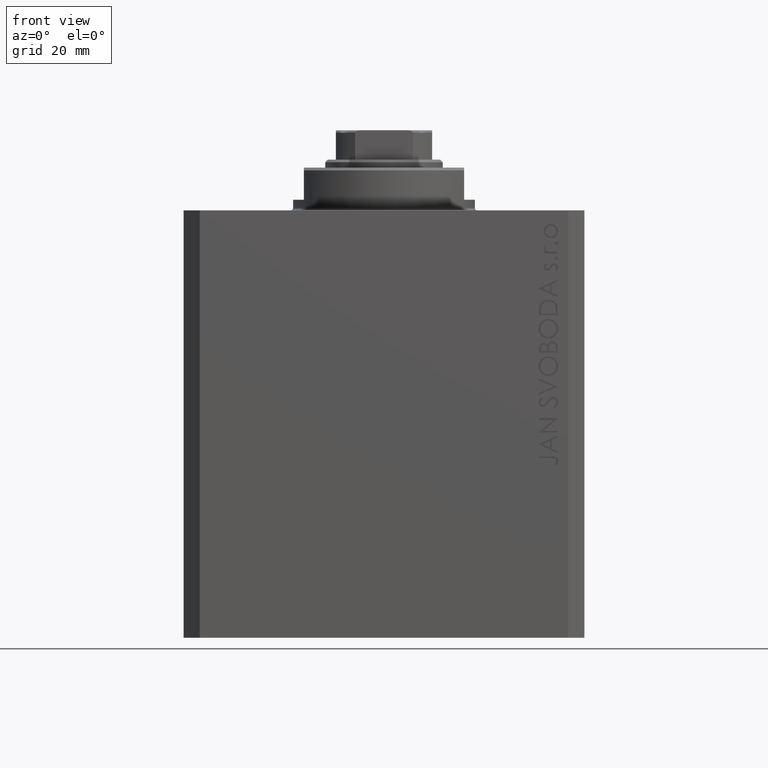
[diagram: clean part render]
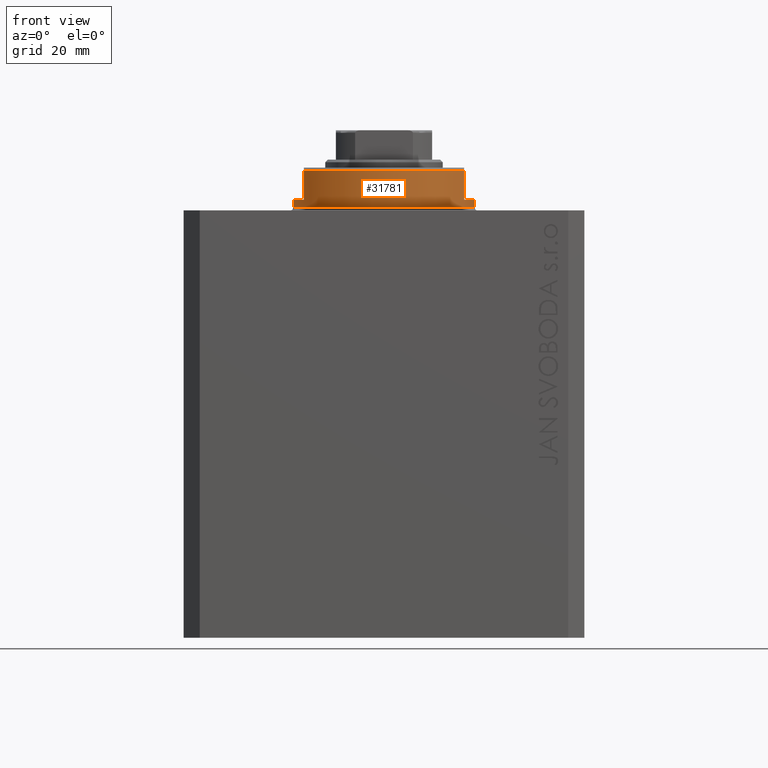
[diagram: same view with one face highlighted and labeled with its STEP entity id]
A machine part, front view. The second image highlights one B-rep face of the part: STEP entity #31781.
In plain terms, the highlighted cylindrical surface (partial cylindrical patch) has radius 17 mm, axis along (0, 0, -1).
Its self-contained STEP definition (entity closure, byte-faithful):
#1506 = LINE ( 'NONE', #5110, #34468 ) ;
#1979 = LINE ( 'NONE', #3389, #39656 ) ;
#2276 = CARTESIAN_POINT ( 'NONE',  ( 14.99999999999999645, -8.000000000000003553, -2.000000000000000000 ) ) ;
#2711 = EDGE_CURVE ( 'NONE', #4168, #4771, #38045, .T. ) ;
#2921 = VERTEX_POINT ( 'NONE', #40996 ) ;
#3389 = CARTESIAN_POINT ( 'NONE',  ( -15.00000000000000000, -8.000000000000001776, -8.000000000000000000 ) ) ;
#4168 = VERTEX_POINT ( 'NONE', #10435 ) ;
#4234 = ORIENTED_EDGE ( 'NONE', *, *, #41694, .F. ) ;
#4541 = AXIS2_PLACEMENT_3D ( 'NONE', #17816, #17576, #32217 ) ;
#4771 = VERTEX_POINT ( 'NONE', #12259 ) ;
#5110 = CARTESIAN_POINT ( 'NONE',  ( 17.00000000000000000, 0.000000000000000000, -8.000000000000000000 ) ) ;
#5360 = VERTEX_POINT ( 'NONE', #21398 ) ;
#6882 = FACE_OUTER_BOUND ( 'NONE', #23162, .T. ) ;
#7333 = ORIENTED_EDGE ( 'NONE', *, *, #36870, .F. ) ;
#7340 = CARTESIAN_POINT ( 'NONE',  ( 0.000000000000000000, 0.000000000000000000, -0.5000000000000004441 ) ) ;
#10435 = CARTESIAN_POINT ( 'NONE',  ( -15.00000000000000000, -8.000000000000001776, -7.500000000000007105 ) ) ;
#11635 = EDGE_CURVE ( 'NONE', #14381, #41422, #22178, .T. ) ;
#11823 = DIRECTION ( 'NONE',  ( -0.000000000000000000, -0.000000000000000000, 1.000000000000000000 ) ) ;
#12046 = DIRECTION ( 'NONE',  ( -1.000000000000000000, 0.000000000000000000, 0.000000000000000000 ) ) ;
#12089 = VERTEX_POINT ( 'NONE', #34652 ) ;
#12139 = EDGE_CURVE ( 'NONE', #2921, #4168, #1979, .T. ) ;
#12166 = ORIENTED_EDGE ( 'NONE', *, *, #20340, .T. ) ;
#12259 = CARTESIAN_POINT ( 'NONE',  ( 15.00000000000000000, -8.000000000000001776, -7.500000000000007105 ) ) ;
#13516 = DIRECTION ( 'NONE',  ( 0.000000000000000000, 0.000000000000000000, -1.000000000000000000 ) ) ;
#13813 = VECTOR ( 'NONE', #11823, 1000.000000000000000 ) ;
#14108 = DIRECTION ( 'NONE',  ( -0.000000000000000000, -0.000000000000000000, 1.000000000000000000 ) ) ;
#14381 = VERTEX_POINT ( 'NONE', #32575 ) ;
#15196 = ORIENTED_EDGE ( 'NONE', *, *, #2711, .T. ) ;
#16656 = CARTESIAN_POINT ( 'NONE',  ( 15.00000000000000000, -8.000000000000001776, -8.000000000000000000 ) ) ;
#17130 = LINE ( 'NONE', #16656, #31545 ) ;
#17227 = CYLINDRICAL_SURFACE ( 'NONE', #39760, 17.00000000000000000 ) ;
#17576 = DIRECTION ( 'NONE',  ( 0.000000000000000000, 0.000000000000000000, -1.000000000000000000 ) ) ;
#17737 = DIRECTION ( 'NONE',  ( -1.000000000000000000, 0.000000000000000000, 0.000000000000000000 ) ) ;
#17816 = CARTESIAN_POINT ( 'NONE',  ( 0.000000000000000000, 0.000000000000000000, -2.000000000000000000 ) ) ;
#18162 = DIRECTION ( 'NONE',  ( -0.000000000000000000, -0.000000000000000000, -1.000000000000000000 ) ) ;
#20340 = EDGE_CURVE ( 'NONE', #5360, #12089, #34105, .T. ) ;
#21398 = CARTESIAN_POINT ( 'NONE',  ( 17.00000000000000000, 0.000000000000000000, -0.5000000000000004441 ) ) ;
#21409 = CIRCLE ( 'NONE', #4541, 17.00000000000000000 ) ;
#22007 = DIRECTION ( 'NONE',  ( 1.000000000000000000, 0.000000000000000000, 0.000000000000000000 ) ) ;
#22062 = VERTEX_POINT ( 'NONE', #33493 ) ;
#22178 = CIRCLE ( 'NONE', #25269, 17.00000000000000000 ) ;
#23162 = EDGE_LOOP ( 'NONE', ( #7333, #28355, #31042, #15196, #4234, #43971, #24244, #12166 ) ) ;
#24244 = ORIENTED_EDGE ( 'NONE', *, *, #35511, .T. ) ;
#24339 = DIRECTION ( 'NONE',  ( 0.000000000000000000, 0.000000000000000000, -1.000000000000000000 ) ) ;
#25269 = AXIS2_PLACEMENT_3D ( 'NONE', #41540, #30752, #12046 ) ;
#27447 = DIRECTION ( 'NONE',  ( -0.000000000000000000, -0.000000000000000000, 1.000000000000000000 ) ) ;
#28355 = ORIENTED_EDGE ( 'NONE', *, *, #35678, .F. ) ;
#28745 = AXIS2_PLACEMENT_3D ( 'NONE', #7340, #18162, #22007 ) ;
#30063 = CARTESIAN_POINT ( 'NONE',  ( -17.00000000000000000, 2.081899558550500280E-15, -8.000000000000000000 ) ) ;
#30752 = DIRECTION ( 'NONE',  ( 0.000000000000000000, 0.000000000000000000, -1.000000000000000000 ) ) ;
#31042 = ORIENTED_EDGE ( 'NONE', *, *, #12139, .T. ) ;
#31545 = VECTOR ( 'NONE', #24339, 1000.000000000000000 ) ;
#31781 = ADVANCED_FACE ( 'NONE', ( #6882 ), #17227, .T. ) ;
#32217 = DIRECTION ( 'NONE',  ( -1.000000000000000000, 0.000000000000000000, 0.000000000000000000 ) ) ;
#32575 = CARTESIAN_POINT ( 'NONE',  ( 17.00000000000000000, 0.000000000000000000, -2.000000000000000000 ) ) ;
#32694 = LINE ( 'NONE', #30063, #13813 ) ;
#33493 = CARTESIAN_POINT ( 'NONE',  ( -17.00000000000000000, 2.081899558550500280E-15, -2.000000000000000000 ) ) ;
#34105 = CIRCLE ( 'NONE', #28745, 17.00000000000000000 ) ;
#34221 = AXIS2_PLACEMENT_3D ( 'NONE', #45594, #45825, #17737 ) ;
#34468 = VECTOR ( 'NONE', #27447, 1000.000000000000000 ) ;
#34652 = CARTESIAN_POINT ( 'NONE',  ( -17.00000000000000000, 2.081899558550500280E-15, -0.5000000000000004441 ) ) ;
#35511 = EDGE_CURVE ( 'NONE', #14381, #5360, #1506, .T. ) ;
#35678 = EDGE_CURVE ( 'NONE', #2921, #22062, #21409, .T. ) ;
#36412 = CARTESIAN_POINT ( 'NONE',  ( 0.000000000000000000, 0.000000000000000000, -8.000000000000000000 ) ) ;
#36870 = EDGE_CURVE ( 'NONE', #22062, #12089, #32694, .T. ) ;
#38045 = CIRCLE ( 'NONE', #34221, 17.00000000000000000 ) ;
#39532 = DIRECTION ( 'NONE',  ( 1.000000000000000000, 0.000000000000000000, 0.000000000000000000 ) ) ;
#39656 = VECTOR ( 'NONE', #13516, 1000.000000000000000 ) ;
#39760 = AXIS2_PLACEMENT_3D ( 'NONE', #36412, #14108, #39532 ) ;
#40996 = CARTESIAN_POINT ( 'NONE',  ( -14.99999999999999645, -8.000000000000003553, -2.000000000000000000 ) ) ;
#41422 = VERTEX_POINT ( 'NONE', #2276 ) ;
#41540 = CARTESIAN_POINT ( 'NONE',  ( 0.000000000000000000, 0.000000000000000000, -2.000000000000000000 ) ) ;
#41694 = EDGE_CURVE ( 'NONE', #41422, #4771, #17130, .T. ) ;
#43971 = ORIENTED_EDGE ( 'NONE', *, *, #11635, .F. ) ;
#45594 = CARTESIAN_POINT ( 'NONE',  ( 0.000000000000000000, 0.000000000000000000, -7.500000000000007105 ) ) ;
#45825 = DIRECTION ( 'NONE',  ( 0.000000000000000000, 0.000000000000000000, 1.000000000000000000 ) ) ;